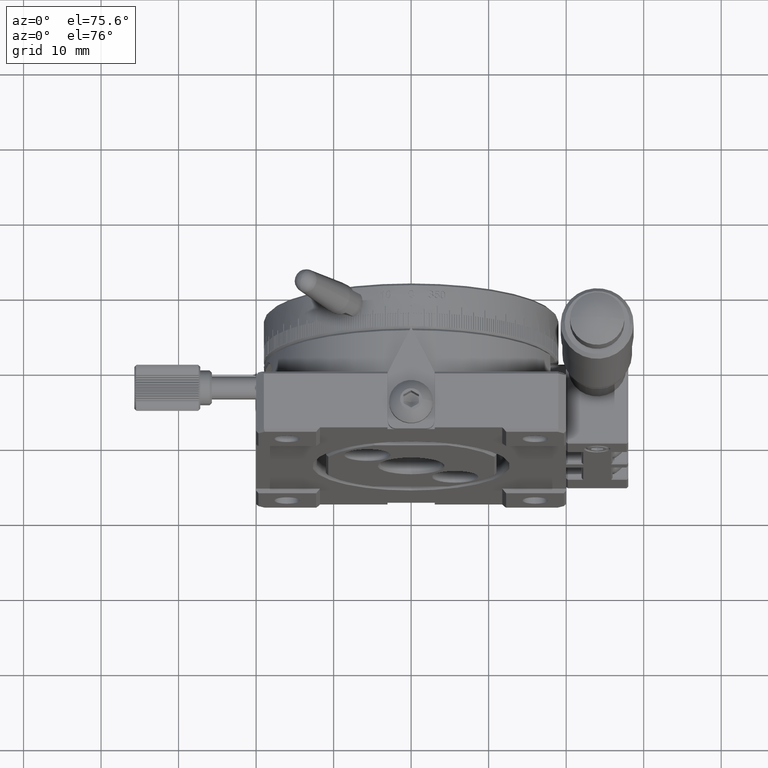
[diagram: clean part render]
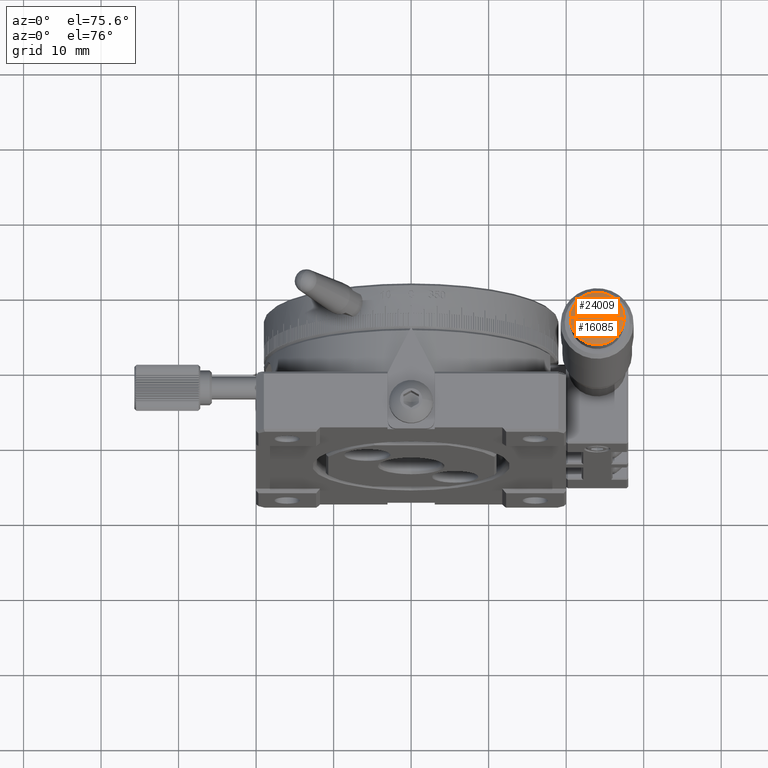
[diagram: same view with one multi-face feature highlighted, each face labeled with its STEP entity id]
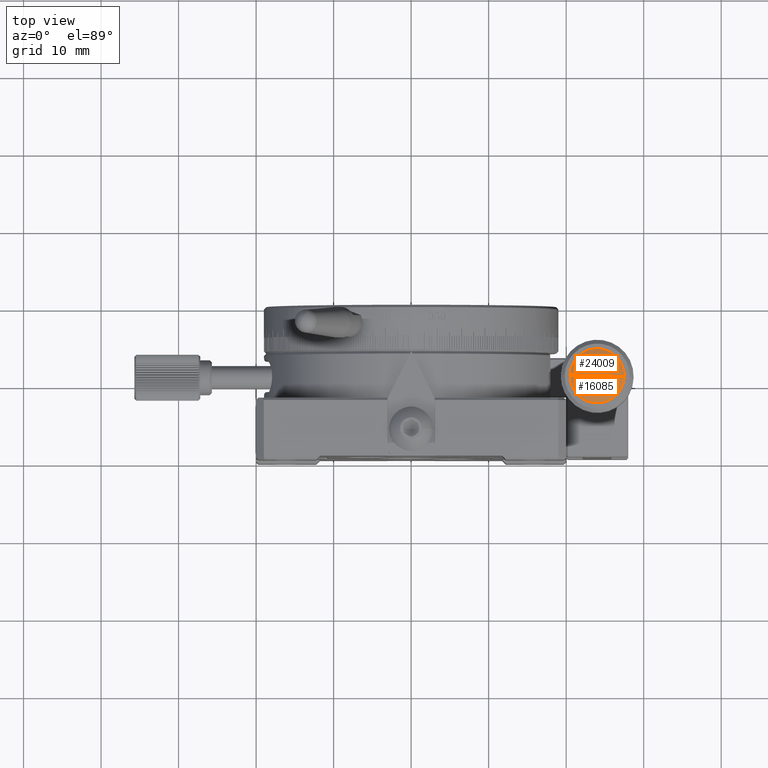
[diagram: same view with one multi-face feature highlighted, each face labeled with its STEP entity id]
A machine part, auxiliary view. The highlighted faces form ONE feature: a constant-radius fillet chain: 2 tangent blend faces with common blend radius 6.1677 mm. The faces share edges in the B-rep.
A second angle (top view) of the same feature is appended — it is thin or edge-on in the first view.
Their STEP definitions:
[1] entity #16085 (Torus):
#1518 = CIRCLE ( 'NONE', #78880, 3.499999999999998668 ) ;
#2392 = AXIS2_PLACEMENT_3D ( 'NONE', #71261, #14959, #22742 ) ;
#4514 = DIRECTION ( 'NONE',  ( 0.9995013412265929542, -0.03157639761343328938, 0.000000000000000000 ) ) ;
#8524 = CARTESIAN_POINT ( 'NONE',  ( 20.50174530570694742, 10.61051739164701857, 37.55396819408655062 ) ) ;
#10790 = EDGE_CURVE ( 'NONE', #79598, #25321, #68159, .T. ) ;
#11788 = DIRECTION ( 'NONE',  ( -0.9995013412265929542, 0.03157639761343300489, 0.000000000000000000 ) ) ;
#14959 = DIRECTION ( 'NONE',  ( -1.293477273850499982E-17, 2.775557561562890365E-16, -1.000000000000000000 ) ) ;
#16085 = ADVANCED_FACE ( 'NONE', ( #66280 ), #24640, .T. ) ;
#19127 = DIRECTION ( 'NONE',  ( -0.03157639761343331020, -0.9995013412265931763, -2.770089170163415756E-16 ) ) ;
#22742 = DIRECTION ( 'NONE',  ( -0.9995013412265930652, 0.03157639761343324775, 2.169253361688502320E-17 ) ) ;
#24640 = TOROIDAL_SURFACE ( 'NONE', #2392, 0.2117486627869505089, 6.167665254481100590 ) ;
#25321 = VERTEX_POINT ( 'NONE', #42770 ) ;
#27183 = DIRECTION ( 'NONE',  ( -0.9995013412265929542, 0.03157639761343318530, 0.000000000000000000 ) ) ;
#30169 = EDGE_LOOP ( 'NONE', ( #62393, #51509, #34993 ) ) ;
#34993 = ORIENTED_EDGE ( 'NONE', *, *, #45766, .F. ) ;
#36226 = AXIS2_PLACEMENT_3D ( 'NONE', #56899, #19127, #4514 ) ;
#42576 = DIRECTION ( 'NONE',  ( 0.03157639761343300489, 0.9995013412265931763, 2.770089170163415756E-16 ) ) ;
#42770 = CARTESIAN_POINT ( 'NONE',  ( 27.49825469429310232, 10.38948260835296011, 37.55396819408655062 ) ) ;
#45766 = EDGE_CURVE ( 'NONE', #25321, #68214, #1518, .T. ) ;
#47907 = CARTESIAN_POINT ( 'NONE',  ( 24.21164307245850367, 10.49331374002971806, 32.33597070130735318 ) ) ;
#51509 = ORIENTED_EDGE ( 'NONE', *, *, #51564, .T. ) ;
#51564 = EDGE_CURVE ( 'NONE', #79598, #68214, #55848, .T. ) ;
#55848 = CIRCLE ( 'NONE', #36226, 6.167665254481100590 ) ;
#56899 = CARTESIAN_POINT ( 'NONE',  ( 23.78835692754150344, 10.50668625997026062, 32.33597070130735318 ) ) ;
#57590 = CARTESIAN_POINT ( 'NONE',  ( 24.00000000000000000, 10.50000000000000000, 37.55396819408655062 ) ) ;
#60292 = AXIS2_PLACEMENT_3D ( 'NONE', #47907, #42576, #11788 ) ;
#62393 = ORIENTED_EDGE ( 'NONE', *, *, #10790, .F. ) ;
#64593 = DIRECTION ( 'NONE',  ( 8.746943706174520278E-18, 2.768707840895594647E-16, -1.000000000000000000 ) ) ;
#65575 = CARTESIAN_POINT ( 'NONE',  ( 24.00000000000000000, 10.50000000000000000, 38.50000000000000000 ) ) ;
#66280 = FACE_OUTER_BOUND ( 'NONE', #30169, .T. ) ;
#68159 = CIRCLE ( 'NONE', #60292, 6.167665254481100590 ) ;
#68214 = VERTEX_POINT ( 'NONE', #8524 ) ;
#71261 = CARTESIAN_POINT ( 'NONE',  ( 24.00000000000000000, 10.50000000000000000, 32.33597070130735318 ) ) ;
#78880 = AXIS2_PLACEMENT_3D ( 'NONE', #57590, #64593, #27183 ) ;
#79598 = VERTEX_POINT ( 'NONE', #65575 ) ;
[2] entity #24009 (Torus):
#2589 = EDGE_CURVE ( 'NONE', #68214, #25321, #6156, .T. ) ;
#4514 = DIRECTION ( 'NONE',  ( 0.9995013412265929542, -0.03157639761343328938, 0.000000000000000000 ) ) ;
#6156 = CIRCLE ( 'NONE', #62534, 3.499999999999998668 ) ;
#6269 = ORIENTED_EDGE ( 'NONE', *, *, #2589, .F. ) ;
#8524 = CARTESIAN_POINT ( 'NONE',  ( 20.50174530570694742, 10.61051739164701857, 37.55396819408655062 ) ) ;
#10790 = EDGE_CURVE ( 'NONE', #79598, #25321, #68159, .T. ) ;
#11788 = DIRECTION ( 'NONE',  ( -0.9995013412265929542, 0.03157639761343300489, 0.000000000000000000 ) ) ;
#13536 = DIRECTION ( 'NONE',  ( -0.9995013412265930652, 0.03157639761343324775, 2.169253361688502320E-17 ) ) ;
#19127 = DIRECTION ( 'NONE',  ( -0.03157639761343331020, -0.9995013412265931763, -2.770089170163415756E-16 ) ) ;
#19155 = AXIS2_PLACEMENT_3D ( 'NONE', #76368, #20095, #13536 ) ;
#20095 = DIRECTION ( 'NONE',  ( -1.293477273850499982E-17, 2.775557561562890365E-16, -1.000000000000000000 ) ) ;
#24009 = ADVANCED_FACE ( 'NONE', ( #50867 ), #54559, .T. ) ;
#25321 = VERTEX_POINT ( 'NONE', #42770 ) ;
#34041 = DIRECTION ( 'NONE',  ( -0.9995013412265929542, 0.03157639761343318530, 0.000000000000000000 ) ) ;
#36226 = AXIS2_PLACEMENT_3D ( 'NONE', #56899, #19127, #4514 ) ;
#39410 = DIRECTION ( 'NONE',  ( 8.746943706174520278E-18, 2.768707840895594647E-16, -1.000000000000000000 ) ) ;
#42576 = DIRECTION ( 'NONE',  ( 0.03157639761343300489, 0.9995013412265931763, 2.770089170163415756E-16 ) ) ;
#42770 = CARTESIAN_POINT ( 'NONE',  ( 27.49825469429310232, 10.38948260835296011, 37.55396819408655062 ) ) ;
#47907 = CARTESIAN_POINT ( 'NONE',  ( 24.21164307245850367, 10.49331374002971806, 32.33597070130735318 ) ) ;
#50867 = FACE_OUTER_BOUND ( 'NONE', #75127, .T. ) ;
#51564 = EDGE_CURVE ( 'NONE', #79598, #68214, #55848, .T. ) ;
#54559 = TOROIDAL_SURFACE ( 'NONE', #19155, 0.2117486627869505089, 6.167665254481100590 ) ;
#55848 = CIRCLE ( 'NONE', #36226, 6.167665254481100590 ) ;
#56899 = CARTESIAN_POINT ( 'NONE',  ( 23.78835692754150344, 10.50668625997026062, 32.33597070130735318 ) ) ;
#60292 = AXIS2_PLACEMENT_3D ( 'NONE', #47907, #42576, #11788 ) ;
#61802 = ORIENTED_EDGE ( 'NONE', *, *, #10790, .T. ) ;
#62534 = AXIS2_PLACEMENT_3D ( 'NONE', #77601, #39410, #34041 ) ;
#65575 = CARTESIAN_POINT ( 'NONE',  ( 24.00000000000000000, 10.50000000000000000, 38.50000000000000000 ) ) ;
#68159 = CIRCLE ( 'NONE', #60292, 6.167665254481100590 ) ;
#68214 = VERTEX_POINT ( 'NONE', #8524 ) ;
#75127 = EDGE_LOOP ( 'NONE', ( #77070, #61802, #6269 ) ) ;
#76368 = CARTESIAN_POINT ( 'NONE',  ( 24.00000000000000000, 10.50000000000000000, 32.33597070130735318 ) ) ;
#77070 = ORIENTED_EDGE ( 'NONE', *, *, #51564, .F. ) ;
#77601 = CARTESIAN_POINT ( 'NONE',  ( 24.00000000000000000, 10.50000000000000000, 37.55396819408655062 ) ) ;
#79598 = VERTEX_POINT ( 'NONE', #65575 ) ;